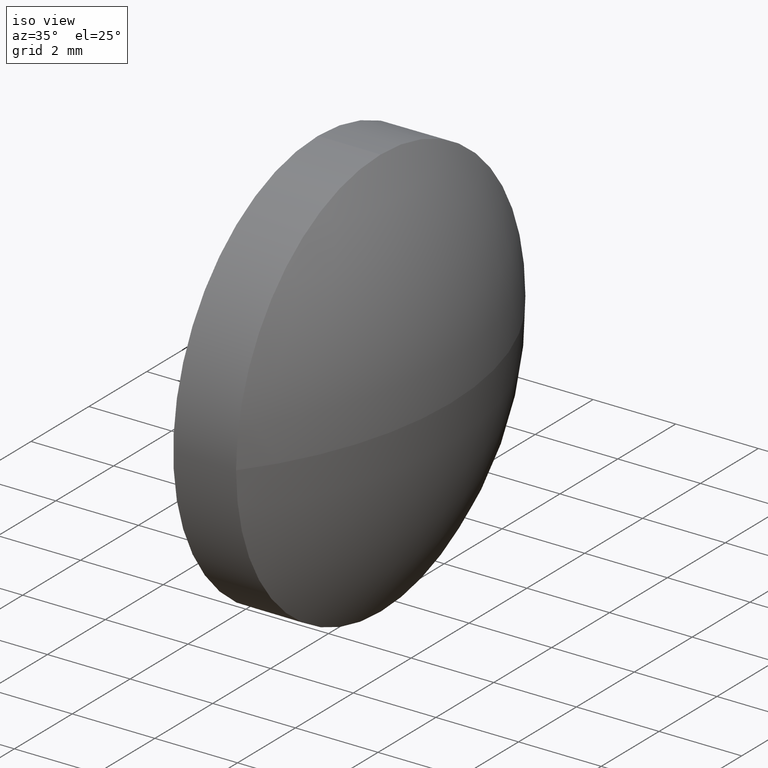
[diagram: clean part render]
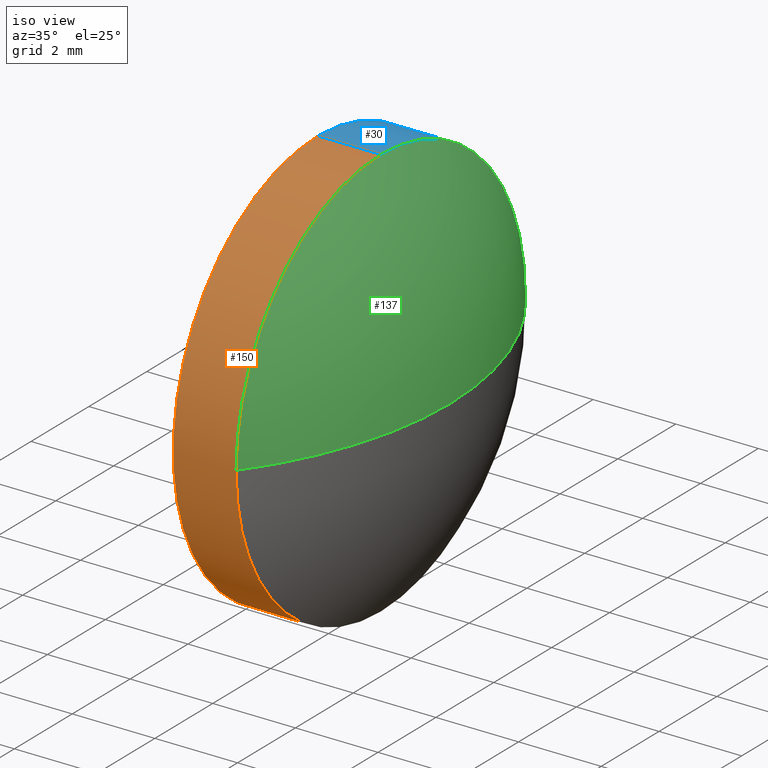
[diagram: same view with three faces highlighted in distinct colors, each labeled with its STEP entity id]
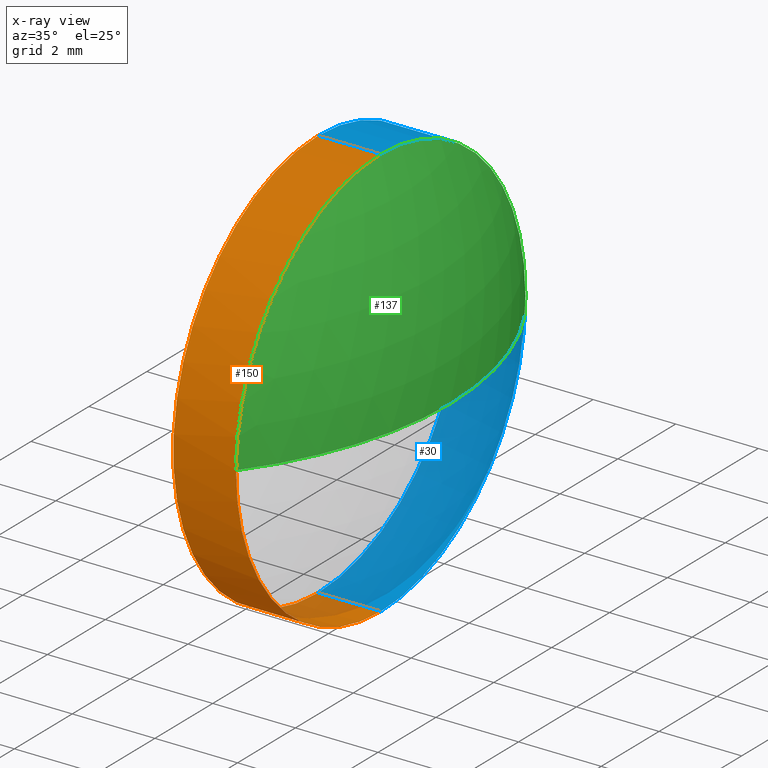
[diagram: x-ray of the same camera — body ghosted, the three highlighted faces saturated]
A machine part, iso view with three faces highlighted in distinct colors.
The next image is the same camera in x-ray (body ghosted, the three faces saturated) — at least one of them is partly hidden behind the body in this view.
Their STEP definitions:

[orange] entity #150 — the highlighted cylindrical surface (partial cylindrical patch) has radius 5 mm, axis along (-1, -0, -0).
#2 = EDGE_LOOP ( 'NONE', ( #108, #89, #33, #50, #153 ) ) ;
#3 = VECTOR ( 'NONE', #159, 1000.000000000000000 ) ;
#5 = LINE ( 'NONE', #14, #36 ) ;
#9 = FACE_OUTER_BOUND ( 'NONE', #2, .T. ) ;
#10 = CARTESIAN_POINT ( 'NONE',  ( 522.2079759984651400, 17.05461516330814200, 0.0000000000000000000 ) ) ;
#14 = CARTESIAN_POINT ( 'NONE',  ( 522.2079759984651400, 17.05461516330814200, 4.999999999999997300 ) ) ;
#25 = DIRECTION ( 'NONE',  ( 0.0000000000000000000, 0.0000000000000000000, 1.000000000000000000 ) ) ;
#28 = CARTESIAN_POINT ( 'NONE',  ( 523.0056482525305900, 17.05461516330814200, -4.999999999999997300 ) ) ;
#33 = ORIENTED_EDGE ( 'NONE', *, *, #142, .T. ) ;
#36 = VECTOR ( 'NONE', #87, 1000.000000000000000 ) ;
#40 = CARTESIAN_POINT ( 'NONE',  ( 524.5256482525305700, 17.05461516330814200, 0.0000000000000000000 ) ) ;
#49 = EDGE_CURVE ( 'NONE', #174, #67, #138, .T. ) ;
#50 = ORIENTED_EDGE ( 'NONE', *, *, #101, .T. ) ;
#55 = CARTESIAN_POINT ( 'NONE',  ( 524.5256482525305700, 17.05461516330814200, -4.999999999999997300 ) ) ;
#57 = CARTESIAN_POINT ( 'NONE',  ( 523.0056482525305900, 17.05461516330814200, 4.999999999999997300 ) ) ;
#61 = CIRCLE ( 'NONE', #139, 4.999999999999997300 ) ;
#66 = DIRECTION ( 'NONE',  ( -1.000000000000000000, -0.0000000000000000000, -0.0000000000000000000 ) ) ;
#67 = VERTEX_POINT ( 'NONE', #57 ) ;
#69 = EDGE_CURVE ( 'NONE', #93, #183, #61, .T. ) ;
#72 = CYLINDRICAL_SURFACE ( 'NONE', #154, 4.999999999999997300 ) ;
#78 = CARTESIAN_POINT ( 'NONE',  ( 524.5256482525305700, 17.05461516330814200, 4.999999999999997300 ) ) ;
#87 = DIRECTION ( 'NONE',  ( -1.000000000000000000, -0.0000000000000000000, -0.0000000000000000000 ) ) ;
#89 = ORIENTED_EDGE ( 'NONE', *, *, #69, .T. ) ;
#93 = VERTEX_POINT ( 'NONE', #55 ) ;
#99 = DIRECTION ( 'NONE',  ( -1.000000000000000000, -0.0000000000000000000, -0.0000000000000000000 ) ) ;
#101 = EDGE_CURVE ( 'NONE', #162, #67, #5, .T. ) ;
#103 = DIRECTION ( 'NONE',  ( 0.0000000000000000000, 0.0000000000000000000, 1.000000000000000000 ) ) ;
#105 = AXIS2_PLACEMENT_3D ( 'NONE', #161, #66, #103 ) ;
#108 = ORIENTED_EDGE ( 'NONE', *, *, #179, .F. ) ;
#114 = DIRECTION ( 'NONE',  ( 0.0000000000000000000, 0.0000000000000000000, 1.000000000000000000 ) ) ;
#123 = AXIS2_PLACEMENT_3D ( 'NONE', #127, #99, #114 ) ;
#127 = CARTESIAN_POINT ( 'NONE',  ( 523.0056482525305900, 17.05461516330814200, 0.0000000000000000000 ) ) ;
#132 = CARTESIAN_POINT ( 'NONE',  ( 522.2079759984651400, 17.05461516330814200, -4.999999999999997300 ) ) ;
#138 = CIRCLE ( 'NONE', #123, 4.999999999999997300 ) ;
#139 = AXIS2_PLACEMENT_3D ( 'NONE', #40, #147, #25 ) ;
#142 = EDGE_CURVE ( 'NONE', #183, #162, #157, .T. ) ;
#147 = DIRECTION ( 'NONE',  ( -1.000000000000000000, -0.0000000000000000000, -0.0000000000000000000 ) ) ;
#149 = CARTESIAN_POINT ( 'NONE',  ( 524.5256482525305700, 12.05461516330816400, 0.0000000000000000000 ) ) ;
#150 = ADVANCED_FACE ( 'NONE', ( #9 ), #72, .T. ) ;
#151 = DIRECTION ( 'NONE',  ( -1.000000000000000000, -0.0000000000000000000, -0.0000000000000000000 ) ) ;
#153 = ORIENTED_EDGE ( 'NONE', *, *, #49, .F. ) ;
#154 = AXIS2_PLACEMENT_3D ( 'NONE', #10, #151, #160 ) ;
#155 = LINE ( 'NONE', #132, #3 ) ;
#157 = CIRCLE ( 'NONE', #105, 4.999999999999997300 ) ;
#159 = DIRECTION ( 'NONE',  ( -1.000000000000000000, -0.0000000000000000000, -0.0000000000000000000 ) ) ;
#160 = DIRECTION ( 'NONE',  ( 0.0000000000000000000, 0.0000000000000000000, 1.000000000000000000 ) ) ;
#161 = CARTESIAN_POINT ( 'NONE',  ( 524.5256482525305700, 17.05461516330814200, 0.0000000000000000000 ) ) ;
#162 = VERTEX_POINT ( 'NONE', #78 ) ;
#174 = VERTEX_POINT ( 'NONE', #28 ) ;
#179 = EDGE_CURVE ( 'NONE', #93, #174, #155, .T. ) ;
#183 = VERTEX_POINT ( 'NONE', #149 ) ;

[blue] entity #30 — the highlighted cylindrical surface (partial cylindrical patch) has radius 5 mm, axis along (-1, -0, -0).
#1 = AXIS2_PLACEMENT_3D ( 'NONE', #172, #143, #82 ) ;
#3 = VECTOR ( 'NONE', #159, 1000.000000000000000 ) ;
#4 = CIRCLE ( 'NONE', #1, 4.999999999999997300 ) ;
#5 = LINE ( 'NONE', #14, #36 ) ;
#6 = ORIENTED_EDGE ( 'NONE', *, *, #124, .F. ) ;
#14 = CARTESIAN_POINT ( 'NONE',  ( 522.2079759984651400, 17.05461516330814200, 4.999999999999997300 ) ) ;
#16 = EDGE_CURVE ( 'NONE', #162, #120, #4, .T. ) ;
#18 = EDGE_LOOP ( 'NONE', ( #71, #167, #6, #54, #107 ) ) ;
#28 = CARTESIAN_POINT ( 'NONE',  ( 523.0056482525305900, 17.05461516330814200, -4.999999999999997300 ) ) ;
#30 = ADVANCED_FACE ( 'NONE', ( #165 ), #47, .T. ) ;
#36 = VECTOR ( 'NONE', #87, 1000.000000000000000 ) ;
#44 = CARTESIAN_POINT ( 'NONE',  ( 523.0056482525305900, 17.05461516330814200, 0.0000000000000000000 ) ) ;
#45 = CARTESIAN_POINT ( 'NONE',  ( 524.5256482525305700, 22.05461516330816000, 6.123233995736740600E-016 ) ) ;
#47 = CYLINDRICAL_SURFACE ( 'NONE', #109, 4.999999999999997300 ) ;
#54 = ORIENTED_EDGE ( 'NONE', *, *, #101, .F. ) ;
#55 = CARTESIAN_POINT ( 'NONE',  ( 524.5256482525305700, 17.05461516330814200, -4.999999999999997300 ) ) ;
#57 = CARTESIAN_POINT ( 'NONE',  ( 523.0056482525305900, 17.05461516330814200, 4.999999999999997300 ) ) ;
#65 = DIRECTION ( 'NONE',  ( 0.0000000000000000000, 0.0000000000000000000, 1.000000000000000000 ) ) ;
#67 = VERTEX_POINT ( 'NONE', #57 ) ;
#71 = ORIENTED_EDGE ( 'NONE', *, *, #166, .T. ) ;
#78 = CARTESIAN_POINT ( 'NONE',  ( 524.5256482525305700, 17.05461516330814200, 4.999999999999997300 ) ) ;
#82 = DIRECTION ( 'NONE',  ( 0.0000000000000000000, 0.0000000000000000000, 1.000000000000000000 ) ) ;
#87 = DIRECTION ( 'NONE',  ( -1.000000000000000000, -0.0000000000000000000, -0.0000000000000000000 ) ) ;
#88 = DIRECTION ( 'NONE',  ( -1.000000000000000000, -0.0000000000000000000, -0.0000000000000000000 ) ) ;
#91 = AXIS2_PLACEMENT_3D ( 'NONE', #184, #88, #65 ) ;
#93 = VERTEX_POINT ( 'NONE', #55 ) ;
#98 = AXIS2_PLACEMENT_3D ( 'NONE', #44, #186, #106 ) ;
#101 = EDGE_CURVE ( 'NONE', #162, #67, #5, .T. ) ;
#106 = DIRECTION ( 'NONE',  ( 0.0000000000000000000, 0.0000000000000000000, 1.000000000000000000 ) ) ;
#107 = ORIENTED_EDGE ( 'NONE', *, *, #16, .T. ) ;
#109 = AXIS2_PLACEMENT_3D ( 'NONE', #146, #129, #156 ) ;
#120 = VERTEX_POINT ( 'NONE', #45 ) ;
#122 = CIRCLE ( 'NONE', #91, 4.999999999999997300 ) ;
#124 = EDGE_CURVE ( 'NONE', #67, #174, #182, .T. ) ;
#129 = DIRECTION ( 'NONE',  ( -1.000000000000000000, -0.0000000000000000000, -0.0000000000000000000 ) ) ;
#132 = CARTESIAN_POINT ( 'NONE',  ( 522.2079759984651400, 17.05461516330814200, -4.999999999999997300 ) ) ;
#143 = DIRECTION ( 'NONE',  ( -1.000000000000000000, -0.0000000000000000000, -0.0000000000000000000 ) ) ;
#146 = CARTESIAN_POINT ( 'NONE',  ( 522.2079759984651400, 17.05461516330814200, 0.0000000000000000000 ) ) ;
#155 = LINE ( 'NONE', #132, #3 ) ;
#156 = DIRECTION ( 'NONE',  ( 0.0000000000000000000, 0.0000000000000000000, 1.000000000000000000 ) ) ;
#159 = DIRECTION ( 'NONE',  ( -1.000000000000000000, -0.0000000000000000000, -0.0000000000000000000 ) ) ;
#162 = VERTEX_POINT ( 'NONE', #78 ) ;
#165 = FACE_OUTER_BOUND ( 'NONE', #18, .T. ) ;
#166 = EDGE_CURVE ( 'NONE', #120, #93, #122, .T. ) ;
#167 = ORIENTED_EDGE ( 'NONE', *, *, #179, .T. ) ;
#172 = CARTESIAN_POINT ( 'NONE',  ( 524.5256482525305700, 17.05461516330814200, 0.0000000000000000000 ) ) ;
#174 = VERTEX_POINT ( 'NONE', #28 ) ;
#179 = EDGE_CURVE ( 'NONE', #93, #174, #155, .T. ) ;
#182 = CIRCLE ( 'NONE', #98, 4.999999999999997300 ) ;
#184 = CARTESIAN_POINT ( 'NONE',  ( 524.5256482525305700, 17.05461516330814200, 0.0000000000000000000 ) ) ;
#186 = DIRECTION ( 'NONE',  ( -1.000000000000000000, -0.0000000000000000000, -0.0000000000000000000 ) ) ;

[green] entity #137 — the highlighted spherical surface has radius 8.2805 mm.
#1 = AXIS2_PLACEMENT_3D ( 'NONE', #172, #143, #82 ) ;
#4 = CIRCLE ( 'NONE', #1, 4.999999999999997300 ) ;
#12 = DIRECTION ( 'NONE',  ( 0.0000000000000000000, -1.000000000000000000, 0.0000000000000000000 ) ) ;
#16 = EDGE_CURVE ( 'NONE', #162, #120, #4, .T. ) ;
#21 = CARTESIAN_POINT ( 'NONE',  ( 526.2056482525305200, 17.05461516330817800, 0.0000000000000000000 ) ) ;
#35 = EDGE_CURVE ( 'NONE', #83, #120, #70, .T. ) ;
#45 = CARTESIAN_POINT ( 'NONE',  ( 524.5256482525305700, 22.05461516330816000, 6.123233995736740600E-016 ) ) ;
#46 = AXIS2_PLACEMENT_3D ( 'NONE', #74, #175, #111 ) ;
#48 = SPHERICAL_SURFACE ( 'NONE', #94, 8.280476190476205600 ) ;
#51 = FACE_OUTER_BOUND ( 'NONE', #60, .T. ) ;
#53 = CARTESIAN_POINT ( 'NONE',  ( 517.9251720620543400, 17.05461516330817800, 0.0000000000000000000 ) ) ;
#59 = EDGE_CURVE ( 'NONE', #83, #183, #97, .T. ) ;
#60 = EDGE_LOOP ( 'NONE', ( #95, #73, #169, #100 ) ) ;
#64 = DIRECTION ( 'NONE',  ( 0.0000000000000000000, 0.0000000000000000000, -1.000000000000000000 ) ) ;
#66 = DIRECTION ( 'NONE',  ( -1.000000000000000000, -0.0000000000000000000, -0.0000000000000000000 ) ) ;
#70 = CIRCLE ( 'NONE', #46, 8.280476190476205600 ) ;
#73 = ORIENTED_EDGE ( 'NONE', *, *, #35, .T. ) ;
#74 = CARTESIAN_POINT ( 'NONE',  ( 517.9251720620543400, 17.05461516330817800, 0.0000000000000000000 ) ) ;
#78 = CARTESIAN_POINT ( 'NONE',  ( 524.5256482525305700, 17.05461516330814200, 4.999999999999997300 ) ) ;
#82 = DIRECTION ( 'NONE',  ( 0.0000000000000000000, 0.0000000000000000000, 1.000000000000000000 ) ) ;
#83 = VERTEX_POINT ( 'NONE', #21 ) ;
#94 = AXIS2_PLACEMENT_3D ( 'NONE', #133, #118, #12 ) ;
#95 = ORIENTED_EDGE ( 'NONE', *, *, #59, .F. ) ;
#97 = CIRCLE ( 'NONE', #135, 8.280476190476227000 ) ;
#100 = ORIENTED_EDGE ( 'NONE', *, *, #142, .F. ) ;
#103 = DIRECTION ( 'NONE',  ( 0.0000000000000000000, 0.0000000000000000000, 1.000000000000000000 ) ) ;
#105 = AXIS2_PLACEMENT_3D ( 'NONE', #161, #66, #103 ) ;
#111 = DIRECTION ( 'NONE',  ( 0.0000000000000000000, -1.000000000000000000, -1.224646799147353500E-016 ) ) ;
#118 = DIRECTION ( 'NONE',  ( 0.0000000000000000000, 0.0000000000000000000, 1.000000000000000000 ) ) ;
#120 = VERTEX_POINT ( 'NONE', #45 ) ;
#133 = CARTESIAN_POINT ( 'NONE',  ( 517.9251720620543400, 17.05461516330817800, 0.0000000000000000000 ) ) ;
#135 = AXIS2_PLACEMENT_3D ( 'NONE', #53, #64, #176 ) ;
#137 = ADVANCED_FACE ( 'NONE', ( #51 ), #48, .T. ) ;
#142 = EDGE_CURVE ( 'NONE', #183, #162, #157, .T. ) ;
#143 = DIRECTION ( 'NONE',  ( -1.000000000000000000, -0.0000000000000000000, -0.0000000000000000000 ) ) ;
#149 = CARTESIAN_POINT ( 'NONE',  ( 524.5256482525305700, 12.05461516330816400, 0.0000000000000000000 ) ) ;
#157 = CIRCLE ( 'NONE', #105, 4.999999999999997300 ) ;
#161 = CARTESIAN_POINT ( 'NONE',  ( 524.5256482525305700, 17.05461516330814200, 0.0000000000000000000 ) ) ;
#162 = VERTEX_POINT ( 'NONE', #78 ) ;
#169 = ORIENTED_EDGE ( 'NONE', *, *, #16, .F. ) ;
#172 = CARTESIAN_POINT ( 'NONE',  ( 524.5256482525305700, 17.05461516330814200, 0.0000000000000000000 ) ) ;
#175 = DIRECTION ( 'NONE',  ( 0.0000000000000000000, -1.224646799147353200E-016, 1.000000000000000000 ) ) ;
#176 = DIRECTION ( 'NONE',  ( -1.000000000000000000, 0.0000000000000000000, 0.0000000000000000000 ) ) ;
#183 = VERTEX_POINT ( 'NONE', #149 ) ;